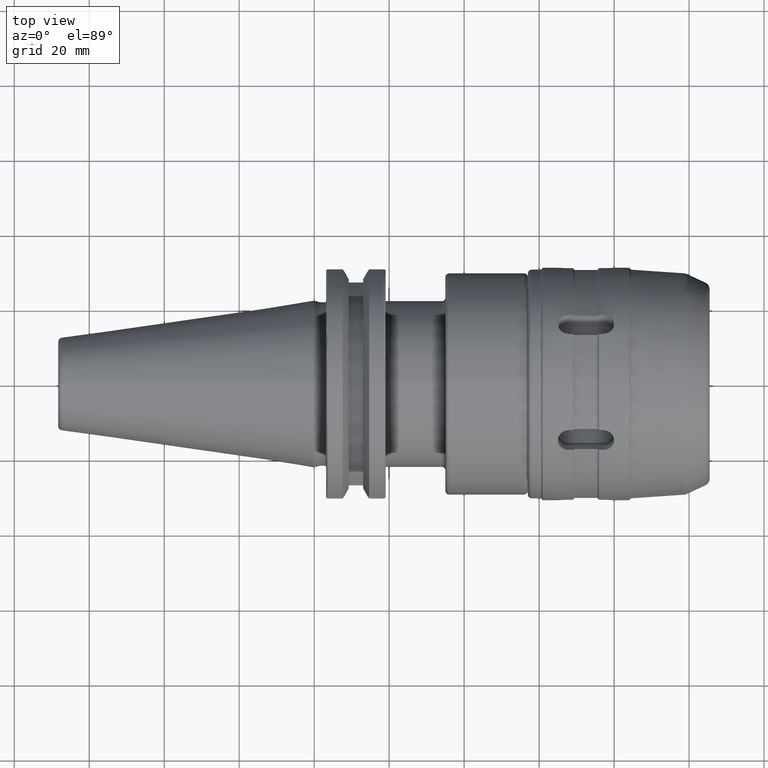
[diagram: clean part render]
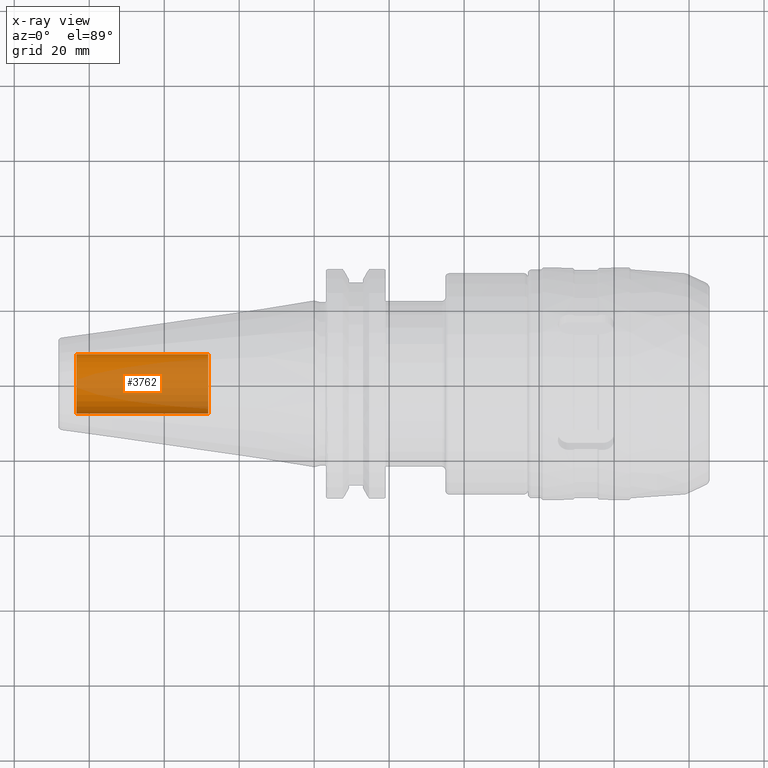
[diagram: x-ray — body ghosted, one internal face saturated and labeled with its STEP entity id]
A machine part, top view, then the same camera in x-ray: the body is ghosted and one INTERNAL B-rep face — a face not visible from any outside direction — is saturated and labeled: STEP entity #3762.
In plain terms, the highlighted cylindrical surface (edge-blend (fillet) strip) has radius 7.9375 mm, axis along (-1, 0, 0).
Its self-contained STEP definition (entity closure, byte-faithful):
#3697=CARTESIAN_POINT('',(-6.345E1,0.E0,0.E0));
#3698=DIRECTION('',(1.E0,0.E0,0.E0));
#3699=DIRECTION('',(0.E0,-1.E0,0.E0));
#3700=AXIS2_PLACEMENT_3D('',#3697,#3698,#3699);
#3707=DIRECTION('',(1.E0,0.E0,0.E0));
#3708=VECTOR('',#3707,3.52E1);
#3709=CARTESIAN_POINT('',(-6.345E1,-7.9375E0,0.E0));
#3710=LINE('',#3709,#3708);
#3711=DIRECTION('',(1.E0,0.E0,0.E0));
#3712=VECTOR('',#3711,3.52E1);
#3713=CARTESIAN_POINT('',(-6.345E1,7.9375E0,0.E0));
#3714=LINE('',#3713,#3712);
#3720=CARTESIAN_POINT('',(-2.825E1,0.E0,0.E0));
#3721=DIRECTION('',(-1.E0,0.E0,0.E0));
#3722=DIRECTION('',(0.E0,1.E0,0.E0));
#3723=AXIS2_PLACEMENT_3D('',#3720,#3721,#3722);
#3735=CARTESIAN_POINT('',(-2.825E1,7.9375E0,0.E0));
#3736=CARTESIAN_POINT('',(-2.825E1,-7.9375E0,0.E0));
#3737=VERTEX_POINT('',#3735);
#3738=VERTEX_POINT('',#3736);
#3739=CARTESIAN_POINT('',(-6.345E1,7.9375E0,0.E0));
#3740=CARTESIAN_POINT('',(-6.345E1,-7.9375E0,0.E0));
#3741=VERTEX_POINT('',#3739);
#3742=VERTEX_POINT('',#3740);
#3747=CARTESIAN_POINT('',(-1.658367445015E1,0.E0,0.E0));
#3748=DIRECTION('',(-1.E0,0.E0,0.E0));
#3749=DIRECTION('',(0.E0,1.E0,0.E0));
#3750=AXIS2_PLACEMENT_3D('',#3747,#3748,#3749);
#3751=CYLINDRICAL_SURFACE('',#3750,7.9375E0);
#3753=ORIENTED_EDGE('',*,*,#3752,.T.);
#3755=ORIENTED_EDGE('',*,*,#3754,.T.);
#3757=ORIENTED_EDGE('',*,*,#3756,.T.);
#3759=ORIENTED_EDGE('',*,*,#3758,.F.);
#3760=EDGE_LOOP('',(#3753,#3755,#3757,#3759));
#3761=FACE_OUTER_BOUND('',#3760,.F.);
#3762=ADVANCED_FACE('',(#3761),#3751,.F.);
#3701=CIRCLE('',#3700,7.9375E0);
#3724=CIRCLE('',#3723,7.9375E0);
#3752=EDGE_CURVE('',#3742,#3741,#3701,.T.);
#3754=EDGE_CURVE('',#3741,#3737,#3714,.T.);
#3756=EDGE_CURVE('',#3737,#3738,#3724,.T.);
#3758=EDGE_CURVE('',#3742,#3738,#3710,.T.);